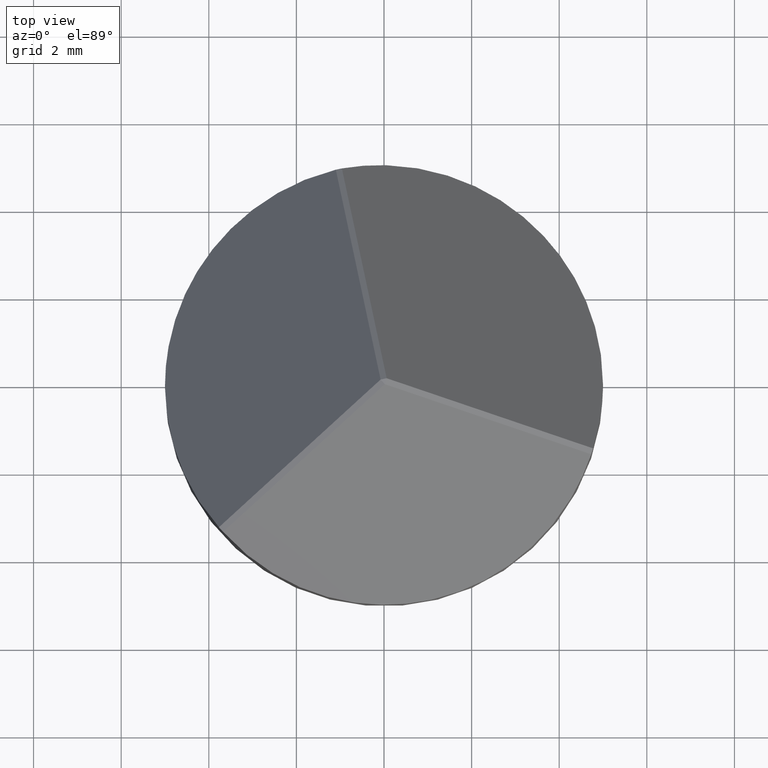
[diagram: clean part render]
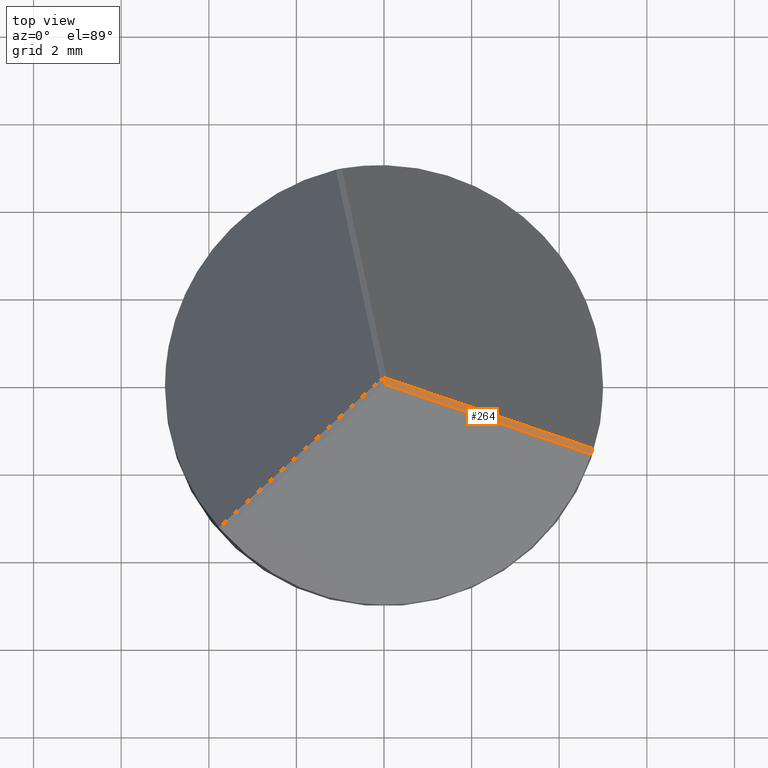
[diagram: same view with one face highlighted and labeled with its STEP entity id]
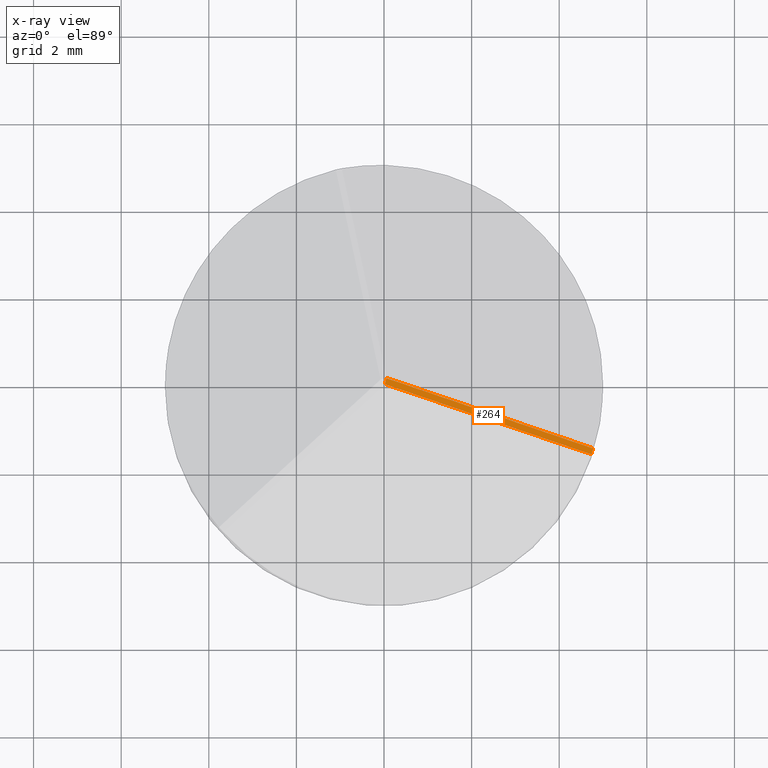
[diagram: x-ray of the same camera — body ghosted, the highlighted face saturated]
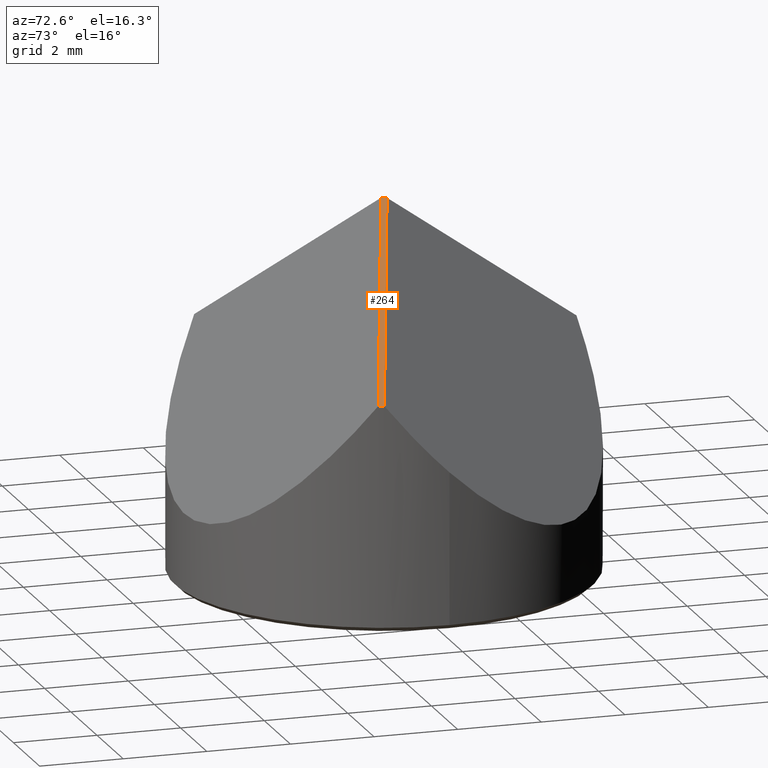
[diagram: same view with one face highlighted and labeled with its STEP entity id]
A machine part, top view. The second image highlights one B-rep face of the part: STEP entity #264.
The next image is the same camera in x-ray: the body ghosted, the highlighted face saturated — about 0% of this face is hidden behind the body in this view.
A second angle (auxiliary view) of the same face is appended — the face is thin or edge-on in the first view.
In plain terms, the highlighted planar face has unit normal (-0.5488, 0.1794, -0.8165).
Its self-contained STEP definition (entity closure, byte-faithful):
#8 = DIRECTION ( 'NONE',  ( 0.3106858647308138321, 0.9505126477098904125, -1.227288938537843456E-14 ) ) ;
#12 = LINE ( 'NONE', #153, #134 ) ;
#17 = VERTEX_POINT ( 'NONE', #189 ) ;
#28 = VERTEX_POINT ( 'NONE', #86 ) ;
#40 = DIRECTION ( 'NONE',  ( -0.7760903269836912921, 0.2536739462952661839, 0.5773502691896258421 ) ) ;
#55 = CARTESIAN_POINT ( 'NONE',  ( 4.745398251497156217, -1.575886402394129249, 4.913279594740165734 ) ) ;
#57 = CARTESIAN_POINT ( 'NONE',  ( 4.730119150283454310, -1.620485366833570140, 4.913751030691558164 ) ) ;
#77 = CARTESIAN_POINT ( 'NONE',  ( 3.807731834008469818, -1.170208289256470247, 5.632620910369531053 ) ) ;
#80 = AXIS2_PLACEMENT_3D ( 'NONE', #77, #262, #287 ) ;
#86 = CARTESIAN_POINT ( 'NONE',  ( 0.01683570817218937171, -0.07989509119468515830, 8.420063852094820334 ) ) ;
#134 = VECTOR ( 'NONE', #40, 1000.000000000000114 ) ;
#136 = FACE_OUTER_BOUND ( 'NONE', #231, .T. ) ;
#137 = EDGE_CURVE ( 'NONE', #17, #305, #324, .T. ) ;
#138 = ORIENTED_EDGE ( 'NONE', *, *, #137, .F. ) ;
#148 = CARTESIAN_POINT ( 'NONE',  ( 4.760045100120551709, -1.531075818952573719, 4.913279594740166623 ) ) ;
#153 = CARTESIAN_POINT ( 'NONE',  ( 3.763794217654481855, -1.304631077016314089, 5.632620910369531941 ) ) ;
#170 = ORIENTED_EDGE ( 'NONE', *, *, #179, .F. ) ;
#172 = ORIENTED_EDGE ( 'NONE', *, *, #322, .F. ) ;
#179 = EDGE_CURVE ( 'NONE', #305, #28, #12, .T. ) ;
#187 = VECTOR ( 'NONE', #8, 1000.000000000000114 ) ;
#189 = CARTESIAN_POINT ( 'NONE',  ( 4.774056766637435167, -1.486062579073748280, 4.913751030691591026 ) ) ;
#195 = EDGE_CURVE ( 'NONE', #28, #355, #302, .T. ) ;
#214 = CARTESIAN_POINT ( 'NONE',  ( 0.03880451634918225673, -0.01268369731476521635, 8.420063852094820334 ) ) ;
#231 = EDGE_LOOP ( 'NONE', ( #138, #172, #332, #170 ) ) ;
#258 = PLANE ( 'NONE',  #80 ) ;
#262 = DIRECTION ( 'NONE',  ( -0.5487787330234525918, 0.1793745676357375862, -0.8164965809277259234 ) ) ;
#264 = ADVANCED_FACE ( 'NONE', ( #136 ), #258, .F. ) ;
#274 = VECTOR ( 'NONE', #283, 1000.000000000000114 ) ;
#283 = DIRECTION ( 'NONE',  ( 0.7760903269836912921, -0.2536739462952662949, -0.5773502691896258421 ) ) ;
#287 = DIRECTION ( 'NONE',  ( 0.7760903269836912921, -0.2536739462952661839, -0.5773502691896259531 ) ) ;
#302 = LINE ( 'NONE', #214, #187 ) ;
#305 = VERTEX_POINT ( 'NONE', #316 ) ;
#310 = CARTESIAN_POINT ( 'NONE',  ( 3.807731834008468930, -1.170208289256470247, 5.632620910369531053 ) ) ;
#316 = CARTESIAN_POINT ( 'NONE',  ( 4.730119150283454310, -1.620485366833570140, 4.913751030691558164 ) ) ;
#317 = CARTESIAN_POINT ( 'NONE',  ( 4.774056766637435167, -1.486062579073748280, 4.913751030691591026 ) ) ;
#318 = LINE ( 'NONE', #310, #274 ) ;
#322 = EDGE_CURVE ( 'NONE', #355, #17, #318, .T. ) ;
#324 =( BOUNDED_CURVE ( )  B_SPLINE_CURVE ( 3, ( #317, #148, #55, #57 ),
 .UNSPECIFIED., .F., .F. ) 
 B_SPLINE_CURVE_WITH_KNOTS ( ( 4, 4 ),
 ( 6.269042700108897748, 6.297327914250258729 ),
 .UNSPECIFIED. ) 
 CURVE ( )  GEOMETRIC_REPRESENTATION_ITEM ( )  RATIONAL_B_SPLINE_CURVE ( ( 1.000000000000000000, 0.9999333299996666646, 0.9999333299996666646, 1.000000000000000000 ) ) 
 REPRESENTATION_ITEM ( '' )  );
#332 = ORIENTED_EDGE ( 'NONE', *, *, #195, .F. ) ;
#355 = VERTEX_POINT ( 'NONE', #367 ) ;
#367 = CARTESIAN_POINT ( 'NONE',  ( 0.06077332452617843772, 0.05452769656515978752, 8.420063852094818557 ) ) ;